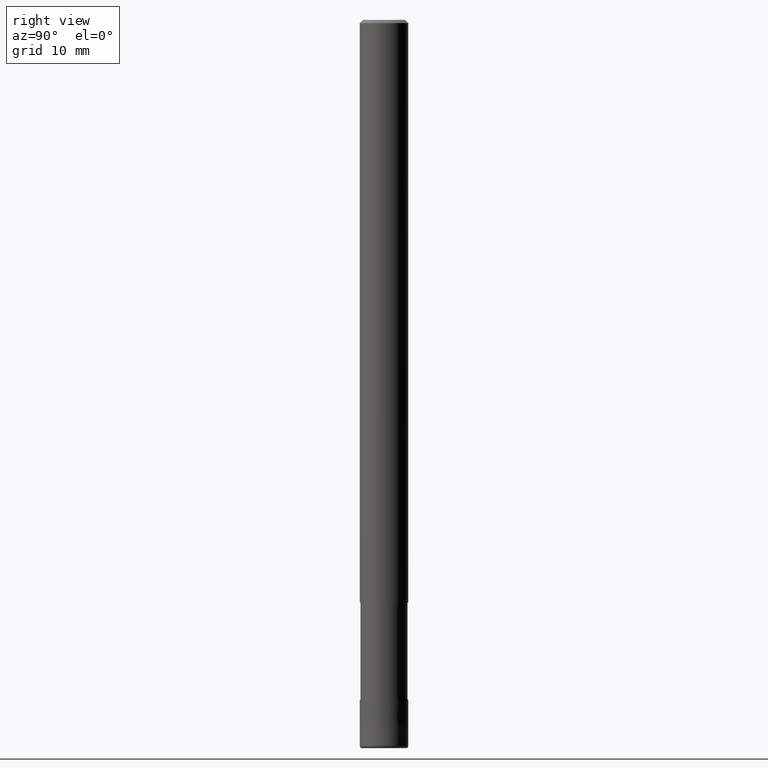
[diagram: clean part render]
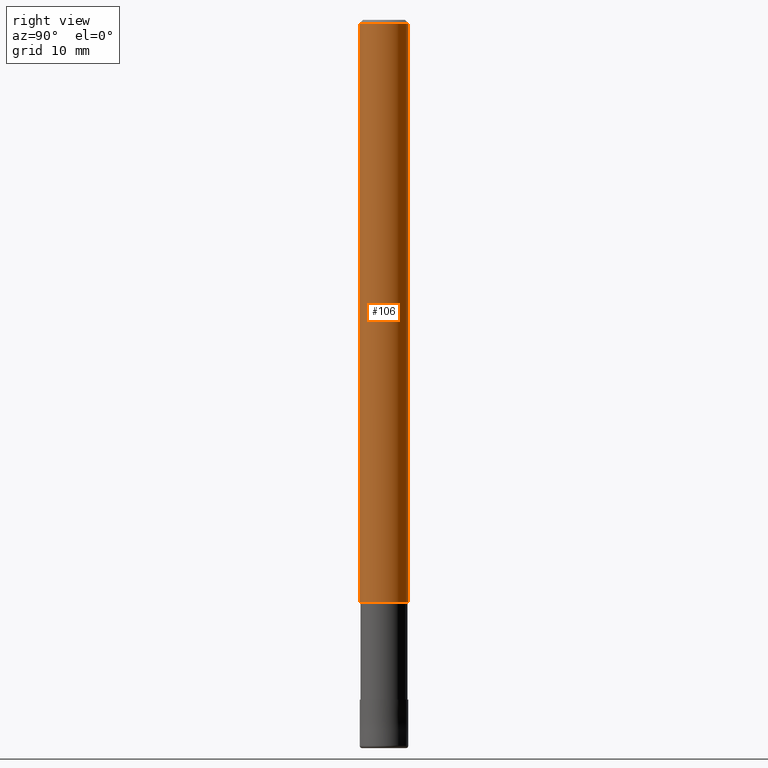
[diagram: same view with one face highlighted and labeled with its STEP entity id]
A machine part, right view. The second image highlights one B-rep face of the part: STEP entity #106.
In plain terms, the highlighted cylindrical surface (edge-blend (fillet) strip) has radius 3 mm, axis along (-0, -0, 1).
Its self-contained STEP definition (entity closure, byte-faithful):
#96=VERTEX_POINT('',#233);
#106=ADVANCED_FACE('',(#244),#245,.T.);
#126=VERTEX_POINT('',#272);
#140=VERTEX_POINT('',#286);
#148=EDGE_CURVE('',#202,#140,#294,.T.);
#154=EDGE_CURVE('',#96,#202,#300,.T.);
#178=EDGE_CURVE('',#126,#140,#328,.T.);
#202=VERTEX_POINT('',#354);
#204=EDGE_CURVE('',#126,#96,#356,.T.);
#233=CARTESIAN_POINT('',(0.0,3.0,-72.0));
#244=FACE_OUTER_BOUND('',#392,.T.);
#245=CYLINDRICAL_SURFACE('',#393,3.0);
#272=CARTESIAN_POINT('',(0.0,3.0,-0.400000000000006));
#286=CARTESIAN_POINT('',(3.67381906146713E-016,-3.0,-0.400000000000006));
#294=LINE('',#456,#457);
#300=CIRCLE('',#465,3.0);
#328=CIRCLE('',#498,3.0);
#354=CARTESIAN_POINT('',(3.67381906146713E-016,-3.0,-72.0));
#356=LINE('',#532,#533);
#392=EDGE_LOOP('',(#555,#556,#557,#558));
#393=AXIS2_PLACEMENT_3D('',#559,#560,#561);
#456=CARTESIAN_POINT('',(3.67381906146713E-016,-3.0,-36.2));
#457=VECTOR('',#635,1.0);
#465=AXIS2_PLACEMENT_3D('',#639,#640,#641);
#498=AXIS2_PLACEMENT_3D('',#681,#682,#683);
#532=CARTESIAN_POINT('',(-3.67381906146713E-016,3.0,-36.2));
#533=VECTOR('',#707,1.0);
#555=ORIENTED_EDGE('',*,*,#204,.F.);
#556=ORIENTED_EDGE('',*,*,#178,.T.);
#557=ORIENTED_EDGE('',*,*,#148,.F.);
#558=ORIENTED_EDGE('',*,*,#154,.F.);
#559=CARTESIAN_POINT('',(0.0,0.0,-36.2));
#560=DIRECTION('',(-0.0,-0.0,1.0));
#561=DIRECTION('',(0.0,1.0,0.0));
#635=DIRECTION('',(-0.0,-0.0,1.0));
#639=CARTESIAN_POINT('',(0.0,0.0,-72.0));
#640=DIRECTION('',(0.0,0.0,-1.0));
#641=DIRECTION('',(0.0,1.0,0.0));
#681=CARTESIAN_POINT('',(0.0,0.0,-0.400000000000006));
#682=DIRECTION('',(0.0,0.0,-1.0));
#683=DIRECTION('',(0.0,1.0,0.0));
#707=DIRECTION('',(0.0,0.0,-1.0));